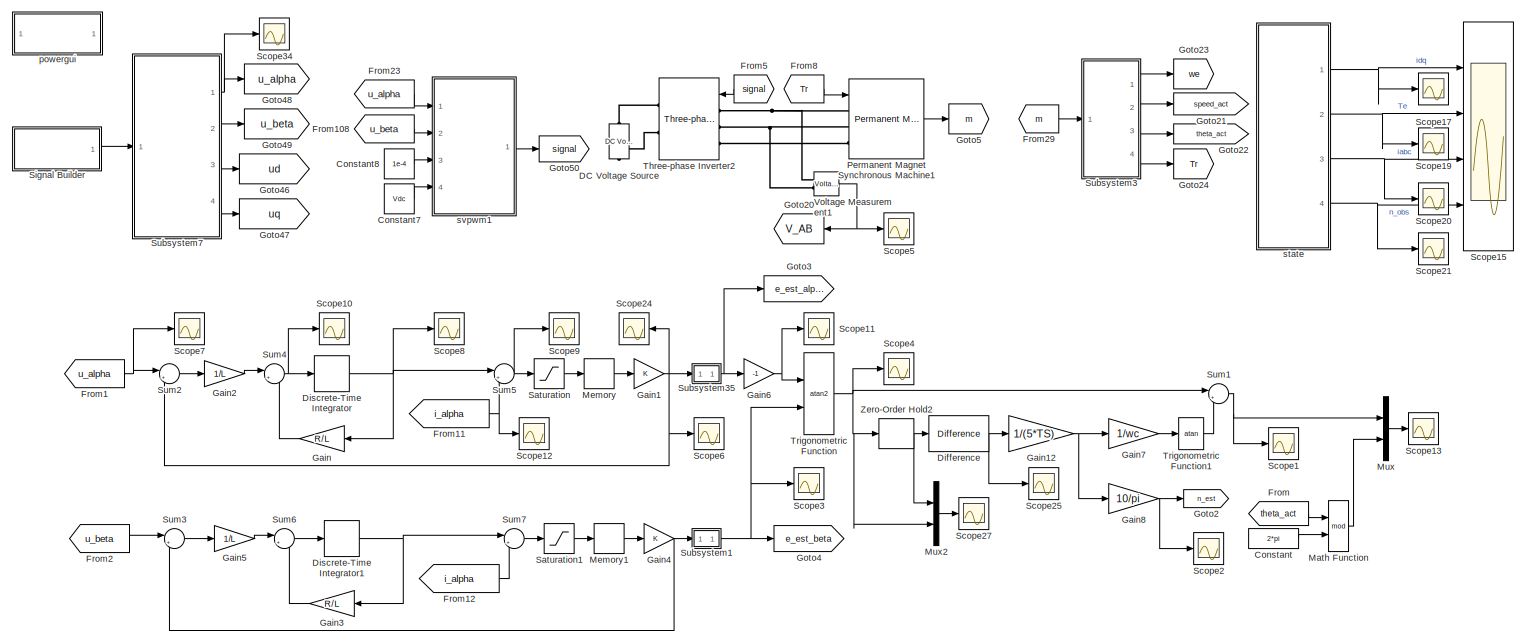
[diagram: root canvas - part 1/2, full width, middle band]
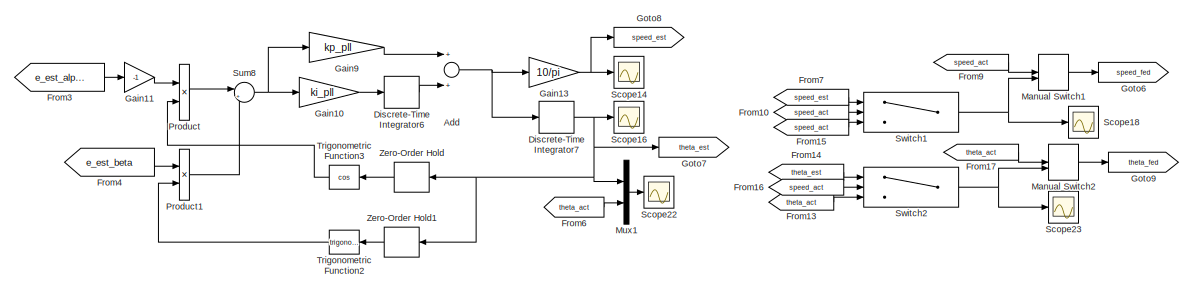
[diagram: root canvas - part 2/2, full width, bottom band]
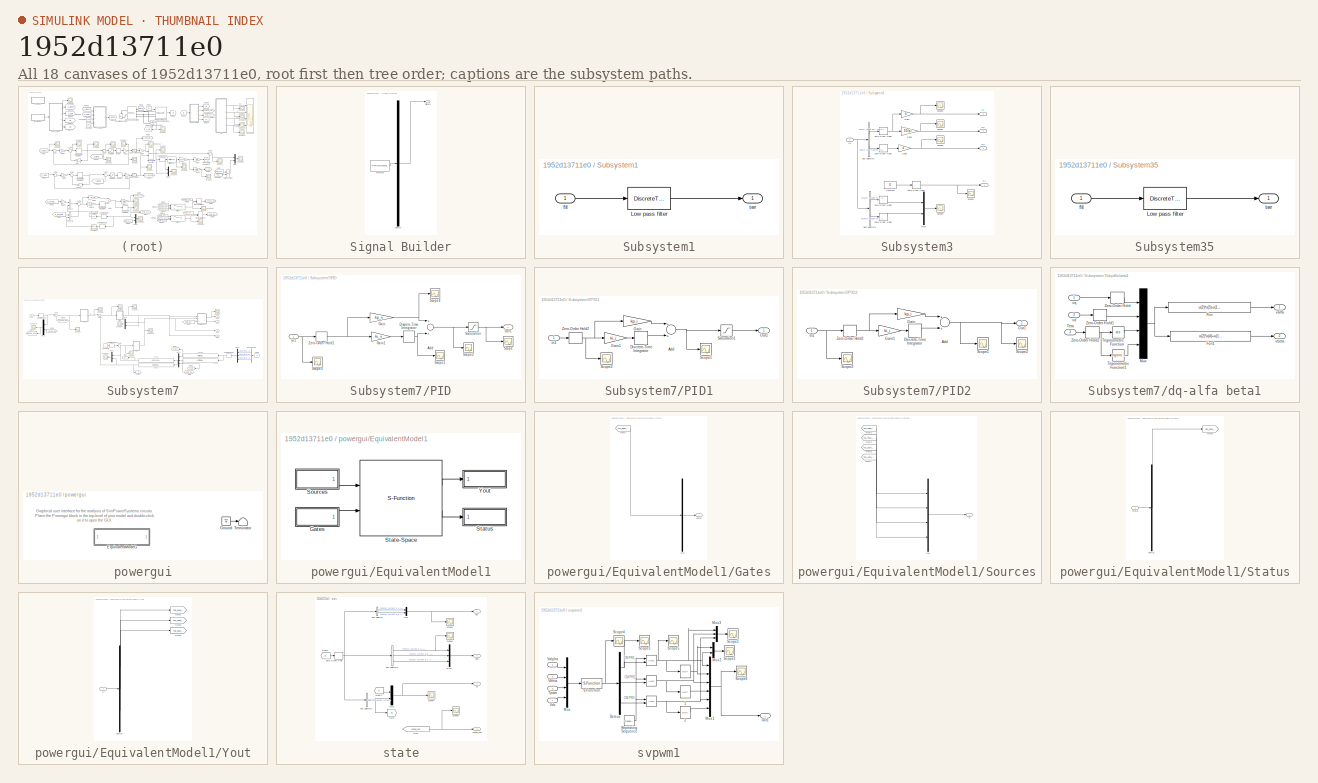
[diagram: thumbnail index - all 18 canvases of the model, root first then tree order]
MODEL slx_1952d13711e0
KIND model
CONFIG InitFcn = parameter
BLOCK [Sum] Add
  InputSameDT = off
  OutDataTypeStr = Inherit: Inherit via internal rule
  Ports = [2, 1]
  SaturateOnIntegerOverflow = off
BLOCK [Constant] Constant
  Value = 2*pi
BLOCK [Constant] Constant7
  Value = Vdc
BLOCK [Constant] Constant8
  Value = 1e-4
BLOCK [Reference] DC Voltage Source  REF=powerlib/Electrical
Sources/DC Voltage Source
  Amplitude = Vdc
  Measurements = Voltage
  Ports = [0, 0, 0, 0, 0, 1, 1]
  SourceBlock = powerlib/Electrical\nSources/DC Voltage Source
  SourceType = DC Voltage Source
BLOCK [Reference] Difference  REF=simulink/Discrete/Difference
  DoSatur = off
  ICPrevInput = 0.0
  InputProcessing = Inherited
  LockScale = off
  OutDataType = fixdt(1, 16)
  OutDataTypeStr = Inherit: Inherit via internal rule
  OutMax = []
  OutMin = []
  OutScaling = 2^-10
  OutputDataTypeScalingMode = Inherit via internal rule
  Ports = [1, 1]
  RndMeth = Floor
  SourceBlock = simulink/Discrete/Difference
  SourceType = Difference
BLOCK [DiscreteIntegrator] Discrete-Time Integrator
  ICPrevOutput = DiscIntNeverNeededParam
  ICPrevScaledInput = DiscIntNeverNeededParam
  Ports = [1, 1]
  SampleTime = -1
BLOCK [DiscreteIntegrator] Discrete-Time Integrator1
  ICPrevOutput = DiscIntNeverNeededParam
  ICPrevScaledInput = DiscIntNeverNeededParam
  Ports = [1, 1]
  SampleTime = -1
BLOCK [DiscreteIntegrator] Discrete-Time Integrator6
  ICPrevOutput = DiscIntNeverNeededParam
  ICPrevScaledInput = DiscIntNeverNeededParam
  Ports = [1, 1]
  SampleTime = -1
BLOCK [DiscreteIntegrator] Discrete-Time Integrator7
  ICPrevOutput = DiscIntNeverNeededParam
  ICPrevScaledInput = DiscIntNeverNeededParam
  Ports = [1, 1]
  SampleTime = -1
BLOCK [From] From
  GotoTag = theta_act
  TagVisibility = global
BLOCK [From] From1
  GotoTag = u_alpha
  TagVisibility = global
BLOCK [From] From10
  GotoTag = speed_act
  TagVisibility = global
BLOCK [From] From108
  GotoTag = u_beta
  TagVisibility = global
BLOCK [From] From11
  GotoTag = i_alpha
  TagVisibility = global
BLOCK [From] From12
  GotoTag = i_alpha
  TagVisibility = global
BLOCK [From] From13
  GotoTag = theta_act
  TagVisibility = global
BLOCK [From] From14
  GotoTag = theta_est
  TagVisibility = global
BLOCK [From] From15
  GotoTag = speed_act
  TagVisibility = global
BLOCK [From] From16
  GotoTag = speed_act
  TagVisibility = global
BLOCK [From] From17
  GotoTag = theta_act
  TagVisibility = global
BLOCK [From] From2
  GotoTag = u_beta
  TagVisibility = global
BLOCK [From] From23
  GotoTag = u_alpha
  TagVisibility = global
BLOCK [From] From29
  GotoTag = m
  TagVisibility = global
BLOCK [From] From3
  GotoTag = e_est_alpha
  TagVisibility = global
BLOCK [From] From4
  GotoTag = e_est_beta
  TagVisibility = global
BLOCK [From] From5
  GotoTag = signal
  TagVisibility = global
BLOCK [From] From6
  GotoTag = theta_act
  TagVisibility = global
BLOCK [From] From7
  GotoTag = speed_est
  TagVisibility = global
BLOCK [From] From8
  GotoTag = Tr
  TagVisibility = global
BLOCK [From] From9
  GotoTag = speed_act
  TagVisibility = global
BLOCK [Gain] Gain
  Gain = R/L
  OutDataTypeStr = Inherit: Inherit via internal rule
  ParamDataTypeStr = Inherit: Inherit via internal rule
  SaturateOnIntegerOverflow = off
BLOCK [Gain] Gain1
  Gain = K
  OutDataTypeStr = Inherit: Inherit via internal rule
  ParamDataTypeStr = Inherit: Inherit via internal rule
  SaturateOnIntegerOverflow = off
BLOCK [Gain] Gain10
  Gain = ki_pll
  OutDataTypeStr = Inherit: Inherit via internal rule
  ParamDataTypeStr = Inherit: Inherit via internal rule
  SaturateOnIntegerOverflow = off
BLOCK [Gain] Gain11
  Gain = -1
  OutDataTypeStr = Inherit: Inherit via internal rule
  ParamDataTypeStr = Inherit: Inherit via internal rule
  SaturateOnIntegerOverflow = off
BLOCK [Gain] Gain12
  Gain = 1/(5*TS)
  OutDataTypeStr = Inherit: Inherit via internal rule
  ParamDataTypeStr = Inherit: Inherit via internal rule
  SaturateOnIntegerOverflow = off
BLOCK [Gain] Gain13
  Gain = 10/pi
  OutDataTypeStr = Inherit: Inherit via internal rule
  ParamDataTypeStr = Inherit: Inherit via internal rule
  SaturateOnIntegerOverflow = off
BLOCK [Gain] Gain2
  Gain = 1/L
  OutDataTypeStr = Inherit: Inherit via internal rule
  ParamDataTypeStr = Inherit: Inherit via internal rule
  SaturateOnIntegerOverflow = off
BLOCK [Gain] Gain3
  Gain = R/L
  OutDataTypeStr = Inherit: Inherit via internal rule
  ParamDataTypeStr = Inherit: Inherit via internal rule
  SaturateOnIntegerOverflow = off
BLOCK [Gain] Gain4
  Gain = K
  OutDataTypeStr = Inherit: Inherit via internal rule
  ParamDataTypeStr = Inherit: Inherit via internal rule
  SaturateOnIntegerOverflow = off
BLOCK [Gain] Gain5
  Gain = 1/L
  OutDataTypeStr = Inherit: Inherit via internal rule
  ParamDataTypeStr = Inherit: Inherit via internal rule
  SaturateOnIntegerOverflow = off
BLOCK [Gain] Gain6
  Gain = -1
  OutDataTypeStr = Inherit: Inherit via internal rule
  ParamDataTypeStr = Inherit: Inherit via internal rule
  SaturateOnIntegerOverflow = off
BLOCK [Gain] Gain7
  Gain = 1/wc
  OutDataTypeStr = Inherit: Inherit via internal rule
  ParamDataTypeStr = Inherit: Inherit via internal rule
  SaturateOnIntegerOverflow = off
BLOCK [Gain] Gain8
  Gain = 10/pi
  OutDataTypeStr = Inherit: Inherit via internal rule
  ParamDataTypeStr = Inherit: Inherit via internal rule
  SaturateOnIntegerOverflow = off
BLOCK [Gain] Gain9
  Gain = kp_pll
  OutDataTypeStr = Inherit: Inherit via internal rule
  ParamDataTypeStr = Inherit: Inherit via internal rule
  SaturateOnIntegerOverflow = off
BLOCK [Goto] Goto2
  GotoTag = n_est
  TagVisibility = global
BLOCK [Goto] Goto20
  GotoTag = V_AB
  TagVisibility = global
BLOCK [Goto] Goto21
  GotoTag = speed_act
  TagVisibility = global
BLOCK [Goto] Goto22
  GotoTag = theta_act
  TagVisibility = global
BLOCK [Goto] Goto23
  GotoTag = we
  TagVisibility = global
BLOCK [Goto] Goto24
  GotoTag = Tr
  TagVisibility = global
BLOCK [Goto] Goto3
  GotoTag = e_est_alpha
  TagVisibility = global
BLOCK [Goto] Goto4
  GotoTag = e_est_beta
  TagVisibility = global
BLOCK [Goto] Goto46
  GotoTag = ud
  TagVisibility = global
BLOCK [Goto] Goto47
  GotoTag = uq
  TagVisibility = global
BLOCK [Goto] Goto48
  GotoTag = u_alpha
  TagVisibility = global
BLOCK [Goto] Goto49
  GotoTag = u_beta
  TagVisibility = global
BLOCK [Goto] Goto5
  GotoTag = m
  TagVisibility = global
BLOCK [Goto] Goto50
  GotoTag = signal
  TagVisibility = global
BLOCK [Goto] Goto6
  GotoTag = speed_fed
  TagVisibility = global
BLOCK [Goto] Goto7
  GotoTag = theta_est
  TagVisibility = global
BLOCK [Goto] Goto8
  GotoTag = speed_est
  TagVisibility = global
BLOCK [Goto] Goto9
  GotoTag = theta_fed
  TagVisibility = global
BLOCK [ManualSwitch] Manual Switch1
BLOCK [ManualSwitch] Manual Switch2
BLOCK [Math] Math Function
  Operator = mod
  Ports = [2, 1]
BLOCK [Memory] Memory
  InheritSampleTime = on
BLOCK [Memory] Memory1
  InheritSampleTime = on
BLOCK [Mux] Mux
  DisplayOption = bar
  Inputs = 2
  Ports = [2, 1]
BLOCK [Mux] Mux1
  DisplayOption = bar
  Inputs = 2
  Ports = [2, 1]
BLOCK [Mux] Mux2
  DisplayOption = bar
  Inputs = 2
  Ports = [2, 1]
BLOCK [Reference] Permanent Magnet Synchronous Machine1  REF=powerlib/Machines/Permanent Magnet
Synchronous Machine
  AttributesFormatString = \n
  Flat = 0
  Flux = 0.003308
  FluxDistribution = Sinusoidal
  Inductance = 0
  InitialConditions = [0,0, 0,0]
  InitialConditions5ph = [0 0 0 0 0 0]
  La = 0.0012
  MachineConstant = Voltage Constant (V_peak L-L / krpm)
  MeasurementBus = off
  Mechanical = [0.0001,0,4]
  MechanicalLoad = Torque Tm
  NbPhases = 3
  PolePairs = 3
  Ports = [1, 1, 0, 0, 0, 3]
  PresetModel = No
  RefAngle = Aligned with phase A axis (original Park)
  Resistance = 0.8
  RotorType = Round
  ShowDetailedParameters = on
  SourceBlock = powerlib/Machines/Permanent Magnet\nSynchronous Machine
  SourceType = Permanent Magnet Synchronous Machine
  TorqueCst = 0.019848
  TsBlock = -1
  TsPowergui = 0
  VoltageCst = 2.4
  dqInductances = [0.01,0.02]
BLOCK [Product] Product
  InputSameDT = off
  OutDataTypeStr = Inherit: Inherit via internal rule
  Ports = [2, 1]
  RndMeth = Floor
  SaturateOnIntegerOverflow = off
BLOCK [Product] Product1
  InputSameDT = off
  OutDataTypeStr = Inherit: Inherit via internal rule
  Ports = [2, 1]
  RndMeth = Floor
  SaturateOnIntegerOverflow = off
BLOCK [Saturate] Saturation
  InputPortMap = u0
  LowerLimit = -5
  Ports = [1, 1]
  UpperLimit = 5
BLOCK [Saturate] Saturation1
  InputPortMap = u0
  LowerLimit = -5
  Ports = [1, 1]
  UpperLimit = 5
BLOCK [Scope] Scope1
  Floating = off
  LimitDataPoints = off
  NumInputPorts = 1
  Ports = [1]
  SaveName = ScopeData7
  ShowLegends = off
  YMax = 700
  YMin = -700
  ZoomMode = xonly
BLOCK [Scope] Scope10
  Floating = off
  LimitDataPoints = off
  NumInputPorts = 1
  Ports = [1]
  SaveName = ScopeData24
  ShowLegends = off
  YMax = 700
  YMin = -700
BLOCK [Scope] Scope11
  Floating = off
  LimitDataPoints = off
  NumInputPorts = 1
  Ports = [1]
  SaveName = ScopeData25
  ShowLegends = off
  YMax = 700
  YMin = -700
BLOCK [Scope] Scope12
  Floating = off
  LimitDataPoints = off
  NumInputPorts = 1
  Ports = [1]
  SaveName = ScopeData31
  ShowLegends = off
  YMax = 700
  YMin = -700
BLOCK [Scope] Scope13
  Floating = off
  LimitDataPoints = off
  NumInputPorts = 1
  Ports = [1]
  SaveName = ScopeData32
  ShowLegends = off
  YMax = 700
  YMin = -700
  ZoomMode = xonly
BLOCK [Scope] Scope14
  Floating = off
  LimitDataPoints = off
  NumInputPorts = 1
  Ports = [1]
  SaveName = ScopeData33
  ShowLegends = off
  YMax = 700
  YMin = -700
  ZoomMode = yonly
BLOCK [Scope] Scope15
  DataFormat = StructureWithTime
  Floating = off
  LimitDataPoints = off
  NumInputPorts = 4
  Ports = [4]
  SaveName = ScopeData20
  ShowLegends = off
  TimeRange = 1.5
  YMax = 15~35~60~900
  YMin = -17.5~-5~-80~-400
  ZoomMode = xonly
BLOCK [Scope] Scope16
  Floating = off
  LimitDataPoints = off
  NumInputPorts = 1
  Ports = [1]
  SaveName = ScopeData34
  ShowLegends = off
  YMax = 700
  YMin = -700
  ZoomMode = xonly
BLOCK [Scope] Scope17
  Floating = off
  LimitDataPoints = off
  NumInputPorts = 1
  Ports = [1]
  SaveName = ScopeData18
  ShowLegends = off
  YMax = 700
  YMin = -700
  ZoomMode = xonly
BLOCK [Scope] Scope18
  Floating = off
  LimitDataPoints = off
  NumInputPorts = 1
  Ports = [1]
  SaveName = ScopeData35
  ShowLegends = off
  YMax = 700
  YMin = -700
  ZoomMode = xonly
BLOCK [Scope] Scope19
  Floating = off
  LimitDataPoints = off
  NumInputPorts = 1
  Ports = [1]
  SaveName = ScopeData19
  ShowLegends = off
  YMax = 700
  YMin = -700
  ZoomMode = xonly
BLOCK [Scope] Scope2
  Floating = off
  LimitDataPoints = off
  NumInputPorts = 1
  Ports = [1]
  SaveName = ScopeData10
  ShowLegends = off
  YMax = 700
  YMin = -700
  ZoomMode = yonly
BLOCK [Scope] Scope20
  Floating = off
  LimitDataPoints = off
  NumInputPorts = 1
  Ports = [1]
  SaveName = ScopeData1
  ShowLegends = off
  YMax = 700
  YMin = -700
  ZoomMode = xonly
BLOCK [Scope] Scope21
  Floating = off
  LimitDataPoints = off
  NumInputPorts = 1
  Ports = [1]
  SaveName = ScopeData4
  ShowLegends = off
  TimeRange = 3
  YMax = 5500
  YMin = 4200
BLOCK [Scope] Scope22
  Floating = off
  LimitDataPoints = off
  NumInputPorts = 1
  Ports = [1]
  SaveName = ScopeData36
  ShowLegends = off
  YMax = 700
  YMin = -700
BLOCK [Scope] Scope23
  Floating = off
  LimitDataPoints = off
  NumInputPorts = 1
  Ports = [1]
  SaveName = ScopeData39
  ShowLegends = off
  YMax = 700
  YMin = -700
  ZoomMode = xonly
BLOCK [Scope] Scope24
  Floating = off
  LimitDataPoints = off
  NumInputPorts = 1
  Ports = [1]
  SaveName = ScopeData40
  ShowLegends = off
  YMax = 700
  YMin = -700
BLOCK [Scope] Scope25
  Floating = off
  LimitDataPoints = off
  NumInputPorts = 1
  Ports = [1]
  SaveName = ScopeData41
  ShowLegends = off
  YMax = 700
  YMin = -700
BLOCK [Scope] Scope27
  Floating = off
  LimitDataPoints = off
  NumInputPorts = 1
  Ports = [1]
  SaveName = ScopeData43
  ShowLegends = off
  YMax = 700
  YMin = -700
  ZoomMode = xonly
BLOCK [Scope] Scope3
  Floating = off
  LimitDataPoints = off
  NumInputPorts = 1
  Ports = [1]
  SaveName = ScopeData11
  ShowLegends = off
  YMax = 700
  YMin = -700
BLOCK [Scope] Scope34
  Floating = off
  LimitDataPoints = off
  NumInputPorts = 1
  Ports = [1]
  SaveName = ScopeData38
  ShowLegends = off
  YMax = 700
  YMin = -700
  ZoomMode = xonly
BLOCK [Scope] Scope4
  Floating = off
  LimitDataPoints = off
  NumInputPorts = 1
  Ports = [1]
  SaveName = ScopeData13
  ShowLegends = off
  YMax = 700
  YMin = -700
BLOCK [Scope] Scope5
  Floating = off
  LimitDataPoints = off
  NumInputPorts = 1
  Ports = [1]
  SaveName = ScopeData78
  ShowLegends = off
  YMax = 700
  YMin = -700
  ZoomMode = xonly
BLOCK [Scope] Scope6
  Floating = off
  LimitDataPoints = off
  NumInputPorts = 1
  Ports = [1]
  SaveName = ScopeData14
  ShowLegends = off
  YMax = 700
  YMin = -700
BLOCK [Scope] Scope7
  Floating = off
  LimitDataPoints = off
  NumInputPorts = 1
  Ports = [1]
  SaveName = ScopeData15
  ShowLegends = off
  YMax = 700
  YMin = -700
BLOCK [Scope] Scope8
  Floating = off
  LimitDataPoints = off
  NumInputPorts = 1
  Ports = [1]
  SaveName = ScopeData16
  ShowLegends = off
  YMax = 700
  YMin = -700
BLOCK [Scope] Scope9
  Floating = off
  LimitDataPoints = off
  NumInputPorts = 1
  Ports = [1]
  SaveName = ScopeData17
  ShowLegends = off
  YMax = 700
  YMin = -700
BLOCK [SubSystem] Signal Builder
  ClipboardFcn = sigbuilder_block('clipboard');
  CloseFcn = sigbuilder_block('close');
  ContinueFcn = sigbuilder_block('continue');
  CopyFcn = sigbuilder_block('copy');
  DeleteFcn = sigbuilder_block('delete');
  LoadFcn = sigbuilder_block('load');
  MaskHideContents = on
  ModelCloseFcn = sigbuilder_block('modelClose');
  NameChangeFcn = sigbuilder_block('namechange');
  OpenFcn = sigbuilder_block('open',[497.25 145.5 550.5 399.75 ]);
  PauseFcn = sigbuilder_block('pause');
  Ports = [0, 1]
  PreSaveFcn = sigbuilder_block('preSave');
  RequestExecContextInheritance = off
  StartFcn = sigbuilder_block('start');
  StopFcn = sigbuilder_block('stop');
  Tag = STV Subsys
BLOCK [Demux] Signal Builder/Demux
  Outputs = 1
  Ports = [1, 1]
  Tag = STV Demux
BLOCK [FromWorkspace] Signal Builder/FromWs
  SampleTime = 0
  Tag = STV FromWs
  VariableName = tuvar
  ZeroCross = on
BLOCK [Outport] Signal Builder/Signal 1
  IconDisplay = Port number
  Tag = STV Outport
BLOCK [SubSystem] Subsystem1
  Ports = [1, 1]
  RequestExecContextInheritance = off
BLOCK [DiscreteTransferFcn] Subsystem1/Low pass filter
  Denominator = [1 -exp(-2*pi*fc1*TS)]
  InputPortMap = u0
  Numerator = [1-exp(-2*pi*fc1*TS)]
  Ports = [1, 1]
  SampleTime = TS
BLOCK [Inport] Subsystem1/fil
  IconDisplay = Port number
BLOCK [Outport] Subsystem1/ter
  IconDisplay = Port number
BLOCK [SubSystem] Subsystem3
  Ports = [1, 4]
  RequestExecContextInheritance = off
BLOCK [BusSelector] Subsystem3/Bus Selector1
  OutputSignals = Rotor speed wm (rad/s),Rotor angle thetam (rad)
  Ports = [1, 2]
BLOCK [BusSelector] Subsystem3/Bus Selector2
  OutputSignals = Stator voltage Vs_d (V),Stator voltage Vs_q (V)
  Ports = [1, 2]
BLOCK [Constant] Subsystem3/Constant
  Value = 0
BLOCK [Gain] Subsystem3/Gain1
  Gain = 4
  OutDataTypeStr = Inherit: Inherit via internal rule
  ParamDataTypeStr = Inherit: Inherit via internal rule
  SaturateOnIntegerOverflow = off
BLOCK [Gain] Subsystem3/Gain2
  Gain = 4
  OutDataTypeStr = Inherit: Inherit via internal rule
  ParamDataTypeStr = Inherit: Inherit via internal rule
  SaturateOnIntegerOverflow = off
BLOCK [Gain] Subsystem3/Gain3
  Gain = 30/pi
  OutDataTypeStr = Inherit: Inherit via internal rule
  ParamDataTypeStr = Inherit: Inherit via internal rule
  SaturateOnIntegerOverflow = off
BLOCK [Inport] Subsystem3/In1
  IconDisplay = Port number
BLOCK [Mux] Subsystem3/Mux1
  DisplayOption = bar
  Inputs = 2
  Ports = [2, 1]
BLOCK [Scope] Subsystem3/Scope1
  Floating = off
  LimitDataPoints = off
  NumInputPorts = 1
  Ports = [1]
  SaveName = ScopeData9
  ShowLegends = off
  YMax = 700
  YMin = -500
BLOCK [Scope] Subsystem3/Scope2
  Floating = off
  LimitDataPoints = off
  NumInputPorts = 1
  Ports = [1]
  SaveName = ScopeData149
  ShowLegends = off
  YMax = 400
  YMin = -25
BLOCK [Scope] Subsystem3/Scope3
  Floating = off
  LimitDataPoints = off
  NumInputPorts = 1
  Ports = [1]
  SaveName = ScopeData79
  ShowLegends = off
  YMax = 191.5
  YMin = 185.5
BLOCK [Scope] Subsystem3/Scope4
  Floating = off
  LimitDataPoints = off
  NumInputPorts = 1
  Ports = [1]
  SaveName = ScopeData88
  ShowLegends = off
  YMax = 400
  YMin = -25
BLOCK [Scope] Subsystem3/Scope5
  Floating = off
  LimitDataPoints = off
  NumInputPorts = 1
  Ports = [1]
  SaveName = ScopeData90
  ShowLegends = off
  YMax = 202.5
  YMin = 195
  ZoomMode = yonly
BLOCK [Outport] Subsystem3/Tr1
  IconDisplay = Port number
BLOCK [Outport] Subsystem3/Tr2
  IconDisplay = Port number
  Port = 2
BLOCK [Outport] Subsystem3/Tr3
  IconDisplay = Port number
  Port = 3
BLOCK [Outport] Subsystem3/Tr4
  IconDisplay = Port number
  Port = 4
BLOCK [ZeroOrderHold] Subsystem3/Zero-Order Hold1
  SampleTime = TS
BLOCK [ZeroOrderHold] Subsystem3/Zero-Order Hold2
  SampleTime = TS
BLOCK [ZeroOrderHold] Subsystem3/Zero-Order Hold3
  SampleTime = TS
BLOCK [ZeroOrderHold] Subsystem3/Zero-Order Hold4
  SampleTime = TS
BLOCK [ZeroOrderHold] Subsystem3/Zero-Order Hold5
  SampleTime = TS
BLOCK [SubSystem] Subsystem35
  Ports = [1, 1]
  RequestExecContextInheritance = off
BLOCK [DiscreteTransferFcn] Subsystem35/Low pass filter
  Denominator = [1 -exp(-2*pi*fc1*TS)]
  InputPortMap = u0
  Numerator = [1-exp(-2*pi*fc1*TS)]
  Ports = [1, 1]
  SampleTime = TS
BLOCK [Inport] Subsystem35/fil
  IconDisplay = Port number
BLOCK [Outport] Subsystem35/ter
  IconDisplay = Port number
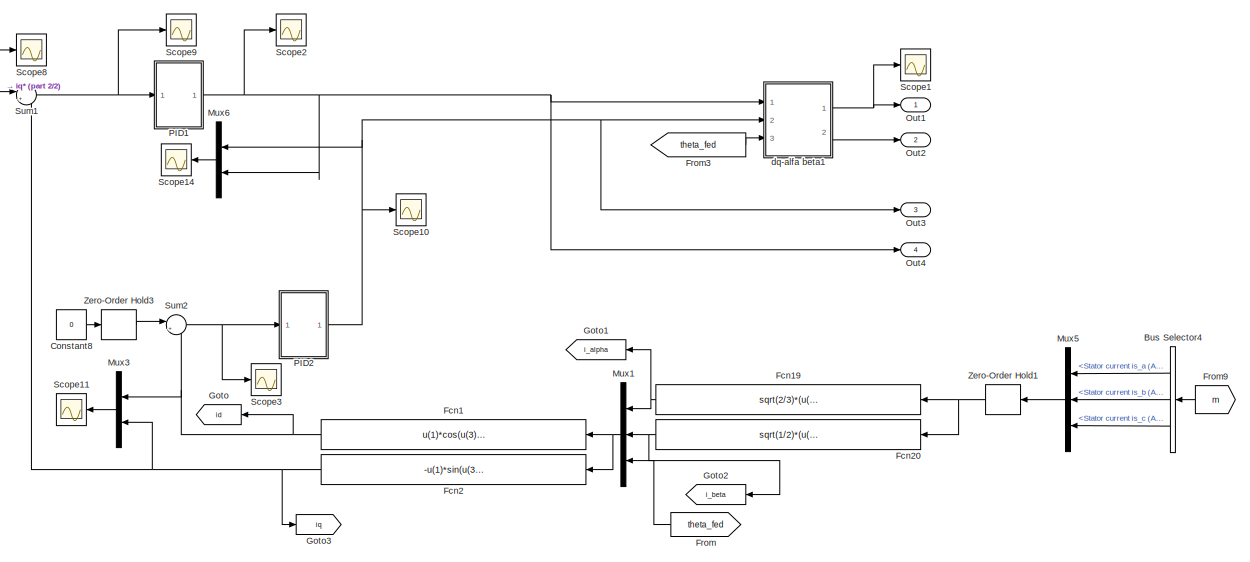
[diagram: Subsystem7 - part 1/2, center side, full height]
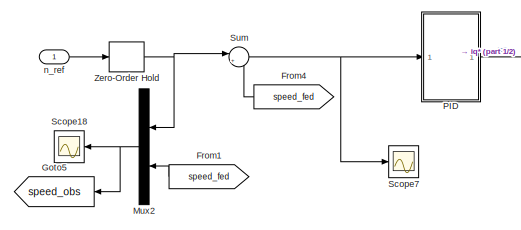
[diagram: Subsystem7 - part 2/2, top left region]
BLOCK [SubSystem] Subsystem7
  Ports = [1, 4]
  RequestExecContextInheritance = off
BLOCK [BusSelector] Subsystem7/Bus Selector4
  OutputSignals = Stator current is_a (A),Stator current is_b (A),Stator current is_c (A)
  Ports = [1, 3]
BLOCK [Constant] Subsystem7/Constant8
  Value = 0
BLOCK [Fcn] Subsystem7/Fcn1
  Expr = u(1)*cos(u(3))+u(2)*sin(u(3))
BLOCK [Fcn] Subsystem7/Fcn19
  Expr = sqrt(2/3)*(u(1)-u(2)/2-u(3)/2)
BLOCK [Fcn] Subsystem7/Fcn2
  Expr = -u(1)*sin(u(3))+u(2)*cos(u(3))
BLOCK [Fcn] Subsystem7/Fcn20
  Expr = sqrt(1/2)*(u(2)-u(3))
BLOCK [From] Subsystem7/From
  GotoTag = theta_fed
  TagVisibility = global
BLOCK [From] Subsystem7/From1
  GotoTag = speed_fed
  TagVisibility = global
BLOCK [From] Subsystem7/From3
  GotoTag = theta_fed
  TagVisibility = global
BLOCK [From] Subsystem7/From4
  GotoTag = speed_fed
  TagVisibility = global
BLOCK [From] Subsystem7/From9
  GotoTag = m
  TagVisibility = global
BLOCK [Goto] Subsystem7/Goto
  GotoTag = id
  TagVisibility = global
BLOCK [Goto] Subsystem7/Goto1
  GotoTag = i_alpha
  TagVisibility = global
BLOCK [Goto] Subsystem7/Goto2
  GotoTag = i_beta
  TagVisibility = global
BLOCK [Goto] Subsystem7/Goto3
  GotoTag = iq
  TagVisibility = global
BLOCK [Goto] Subsystem7/Goto5
  GotoTag = speed_obs
  TagVisibility = global
BLOCK [Mux] Subsystem7/Mux1
  DisplayOption = bar
  Inputs = 3
  Ports = [3, 1]
BLOCK [Mux] Subsystem7/Mux2
  DisplayOption = bar
  Inputs = 2
  Ports = [2, 1]
BLOCK [Mux] Subsystem7/Mux3
  DisplayOption = bar
  Inputs = 2
  Ports = [2, 1]
BLOCK [Mux] Subsystem7/Mux5
  DisplayOption = bar
  Inputs = 3
  Ports = [3, 1]
BLOCK [Mux] Subsystem7/Mux6
  DisplayOption = bar
  Inputs = 2
  Ports = [2, 1]
BLOCK [Outport] Subsystem7/Out1
  IconDisplay = Port number
BLOCK [Outport] Subsystem7/Out2
  IconDisplay = Port number
  Port = 2
BLOCK [Outport] Subsystem7/Out3
  IconDisplay = Port number
  Port = 3
BLOCK [Outport] Subsystem7/Out4
  IconDisplay = Port number
  Port = 4
BLOCK [SubSystem] Subsystem7/PID
  Ports = [1, 1]
  RequestExecContextInheritance = off
BLOCK [Sum] Subsystem7/PID/Add
  InputSameDT = off
  OutDataTypeStr = Inherit: Inherit via internal rule
  Ports = [2, 1]
  SaturateOnIntegerOverflow = off
BLOCK [DiscreteIntegrator] Subsystem7/PID/Discrete-Time Integrator
  ICPrevOutput = DiscIntNeverNeededParam
  ICPrevScaledInput = DiscIntNeverNeededParam
  InitialConditionSetting = State (most efficient)
  Ports = [1, 1]
  SampleTime = -1
BLOCK [Gain] Subsystem7/PID/Gain
  Gain = kp_v
  OutDataTypeStr = Inherit: Inherit via internal rule
  ParamDataTypeStr = Inherit: Inherit via internal rule
  SaturateOnIntegerOverflow = off
BLOCK [Gain] Subsystem7/PID/Gain1
  Gain = ki_v
  OutDataTypeStr = Inherit: Inherit via internal rule
  ParamDataTypeStr = Inherit: Inherit via internal rule
  SaturateOnIntegerOverflow = off
BLOCK [Inport] Subsystem7/PID/In1
  IconDisplay = Port number
BLOCK [Outport] Subsystem7/PID/Out1
  IconDisplay = Port number
BLOCK [Saturate] Subsystem7/PID/Saturation
  InputPortMap = u0
  LowerLimit = -10
  Ports = [1, 1]
  UpperLimit = 15
BLOCK [Scope] Subsystem7/PID/Scope
  Floating = off
  LimitDataPoints = off
  NumInputPorts = 1
  Ports = [1]
  SaveName = ScopeData12
  ShowLegends = off
  ZoomMode = yonly
BLOCK [Scope] Subsystem7/PID/Scope1
  Floating = off
  LimitDataPoints = off
  NumInputPorts = 1
  Ports = [1]
  SaveName = ScopeData27
  ShowLegends = off
BLOCK [Scope] Subsystem7/PID/Scope2
  Floating = off
  LimitDataPoints = off
  NumInputPorts = 1
  Ports = [1]
  SaveName = ScopeData68
  ShowLegends = off
  ZoomMode = yonly
BLOCK [Scope] Subsystem7/PID/Scope3
  Floating = off
  LimitDataPoints = off
  NumInputPorts = 1
  Ports = [1]
  SaveName = ScopeData69
  ShowLegends = off
  ZoomMode = yonly
BLOCK [Scope] Subsystem7/PID/Scope4
  Floating = off
  LimitDataPoints = off
  NumInputPorts = 1
  Ports = [1]
  SaveName = ScopeData87
  ShowLegends = off
  ZoomMode = yonly
BLOCK [ZeroOrderHold] Subsystem7/PID/Zero-Order Hold1
  SampleTime = TS
BLOCK [SubSystem] Subsystem7/PID1
  Ports = [1, 1]
  RequestExecContextInheritance = off
BLOCK [Sum] Subsystem7/PID1/Add
  InputSameDT = off
  OutDataTypeStr = Inherit: Inherit via internal rule
  Ports = [2, 1]
  SaturateOnIntegerOverflow = off
BLOCK [DiscreteIntegrator] Subsystem7/PID1/Discrete-Time Integrator
  ICPrevOutput = DiscIntNeverNeededParam
  ICPrevScaledInput = DiscIntNeverNeededParam
  InitialConditionSetting = State (most efficient)
  Ports = [1, 1]
  SampleTime = -1
BLOCK [Gain] Subsystem7/PID1/Gain
  Gain = kp_i
  OutDataTypeStr = Inherit: Inherit via internal rule
  ParamDataTypeStr = Inherit: Inherit via internal rule
  SaturateOnIntegerOverflow = off
BLOCK [Gain] Subsystem7/PID1/Gain1
  Gain = ki_i
  OutDataTypeStr = Inherit: Inherit via internal rule
  ParamDataTypeStr = Inherit: Inherit via internal rule
  SaturateOnIntegerOverflow = off
BLOCK [Inport] Subsystem7/PID1/In1
  IconDisplay = Port number
BLOCK [Outport] Subsystem7/PID1/Out1
  IconDisplay = Port number
BLOCK [Saturate] Subsystem7/PID1/Saturation1
  InputPortMap = u0
  LowerLimit = -300
  Ports = [1, 1]
  UpperLimit = 300
BLOCK [Scope] Subsystem7/PID1/Scope1
  Floating = off
  LimitDataPoints = off
  NumInputPorts = 1
  Ports = [1]
  SaveName = ScopeData64
  ShowLegends = off
  ZoomMode = yonly
BLOCK [Scope] Subsystem7/PID1/Scope3
  Floating = off
  LimitDataPoints = off
  NumInputPorts = 1
  Ports = [1]
  SaveName = ScopeData65
  ShowLegends = off
  ZoomMode = yonly
BLOCK [ZeroOrderHold] Subsystem7/PID1/Zero-Order Hold2
  SampleTime = TS
BLOCK [SubSystem] Subsystem7/PID2
  Ports = [1, 1]
  RequestExecContextInheritance = off
BLOCK [Sum] Subsystem7/PID2/Add
  InputSameDT = off
  OutDataTypeStr = Inherit: Inherit via internal rule
  Ports = [2, 1]
  SaturateOnIntegerOverflow = off
BLOCK [DiscreteIntegrator] Subsystem7/PID2/Discrete-Time Integrator
  ICPrevOutput = DiscIntNeverNeededParam
  ICPrevScaledInput = DiscIntNeverNeededParam
  InitialConditionSetting = State (most efficient)
  Ports = [1, 1]
  SampleTime = -1
BLOCK [Gain] Subsystem7/PID2/Gain
  Gain = kp_i
  OutDataTypeStr = Inherit: Inherit via internal rule
  ParamDataTypeStr = Inherit: Inherit via internal rule
  SaturateOnIntegerOverflow = off
BLOCK [Gain] Subsystem7/PID2/Gain1
  Gain = ki_i
  OutDataTypeStr = Inherit: Inherit via internal rule
  ParamDataTypeStr = Inherit: Inherit via internal rule
  SaturateOnIntegerOverflow = off
BLOCK [Inport] Subsystem7/PID2/In1
  IconDisplay = Port number
BLOCK [Outport] Subsystem7/PID2/Out1
  IconDisplay = Port number
BLOCK [Scope] Subsystem7/PID2/Scope1
  Floating = off
  LimitDataPoints = off
  NumInputPorts = 1
  Ports = [1]
  SaveName = ScopeData67
  ShowLegends = off
  YMax = -115
  YMin = -185
  ZoomMode = yonly
BLOCK [Scope] Subsystem7/PID2/Scope2
  Floating = off
  LimitDataPoints = off
  NumInputPorts = 1
  Ports = [1]
  SaveName = ScopeData66
  ShowLegends = off
  ZoomMode = yonly
BLOCK [Scope] Subsystem7/PID2/Scope3
  Floating = off
  LimitDataPoints = off
  NumInputPorts = 1
  Ports = [1]
  SaveName = ScopeData70
  ShowLegends = off
  ZoomMode = yonly
BLOCK [ZeroOrderHold] Subsystem7/PID2/Zero-Order Hold2
  SampleTime = TS
BLOCK [Scope] Subsystem7/Scope1
  Floating = off
  LimitDataPoints = off
  NumInputPorts = 1
  Ports = [1]
  SaveName = ScopeData37
  ShowLegends = off
  ZoomMode = yonly
BLOCK [Scope] Subsystem7/Scope10
  Floating = off
  LimitDataPoints = off
  NumInputPorts = 1
  Ports = [1]
  SaveName = ScopeData30
  ShowLegends = off
  ZoomMode = yonly
BLOCK [Scope] Subsystem7/Scope11
  DataFormat = StructureWithTime
  Floating = off
  LimitDataPoints = off
  NumInputPorts = 1
  Ports = [1]
  SampleTime = 0
  SaveName = ScopeData71
  ShowLegends = off
  TimeRange = 1.7
  YMax = 17.5
  YMin = -15
  ZoomMode = yonly
BLOCK [Scope] Subsystem7/Scope14
  DataFormat = StructureWithTime
  Floating = off
  LimitDataPoints = off
  NumInputPorts = 1
  Ports = [1]
  SampleTime = 0
  SaveName = ScopeData106
  ShowLegends = off
  TimeRange = 1.7
  YMax = 17.5
  YMin = -15
BLOCK [Scope] Subsystem7/Scope18
  DataFormat = StructureWithTime
  Floating = off
  LimitDataPoints = off
  NumInputPorts = 1
  Ports = [1]
  SaveName = ScopeData21
  ShowLegends = off
  TimeRange = 0.01073731461302402
  YMax = 1006.526183941498
  YMin = 996.9949713569969
BLOCK [Scope] Subsystem7/Scope2
  Floating = off
  LimitDataPoints = off
  NumInputPorts = 1
  Ports = [1]
  SaveName = ScopeData22
  ShowLegends = off
  ZoomMode = yonly
BLOCK [Scope] Subsystem7/Scope3
  Floating = off
  LimitDataPoints = off
  NumInputPorts = 1
  Ports = [1]
  SaveName = ScopeData23
  ShowLegends = off
  ZoomMode = yonly
BLOCK [Scope] Subsystem7/Scope7
  Floating = off
  LimitDataPoints = off
  NumInputPorts = 1
  Ports = [1]
  SaveName = ScopeData26
  ShowLegends = off
  ZoomMode = yonly
BLOCK [Scope] Subsystem7/Scope8
  Floating = off
  LimitDataPoints = off
  NumInputPorts = 1
  Ports = [1]
  SaveName = ScopeData28
  ShowLegends = off
  ZoomMode = yonly
BLOCK [Scope] Subsystem7/Scope9
  Floating = off
  LimitDataPoints = off
  NumInputPorts = 1
  Ports = [1]
  SaveName = ScopeData29
  ShowLegends = off
  ZoomMode = yonly
BLOCK [Sum] Subsystem7/Sum
  IconShape = round
  InputSameDT = off
  Inputs = |+-
  OutDataTypeStr = Inherit: Inherit via internal rule
  Ports = [2, 1]
  SaturateOnIntegerOverflow = off
BLOCK [Sum] Subsystem7/Sum1
  IconShape = round
  InputSameDT = off
  Inputs = |+-
  OutDataTypeStr = Inherit: Inherit via internal rule
  Ports = [2, 1]
  SaturateOnIntegerOverflow = off
BLOCK [Sum] Subsystem7/Sum2
  IconShape = round
  InputSameDT = off
  Inputs = |+-
  OutDataTypeStr = Inherit: Inherit via internal rule
  Ports = [2, 1]
  SaturateOnIntegerOverflow = off
BLOCK [ZeroOrderHold] Subsystem7/Zero-Order Hold
  SampleTime = TS
BLOCK [ZeroOrderHold] Subsystem7/Zero-Order Hold1
  SampleTime = TS
BLOCK [ZeroOrderHold] Subsystem7/Zero-Order Hold3
  SampleTime = TS
BLOCK [SubSystem] Subsystem7/dq-alfa beta1
  Ports = [3, 2]
  RequestExecContextInheritance = off
BLOCK [Fcn] Subsystem7/dq-alfa beta1/Fcn
  Expr = u(2)*u(3)-u(1)*u(4)
BLOCK [Fcn] Subsystem7/dq-alfa beta1/Fcn1
  Expr = u(2)*u(4)+u(1)*u(3)
BLOCK [Mux] Subsystem7/dq-alfa beta1/Mux
  Ports = [4, 1]
BLOCK [Inport] Subsystem7/dq-alfa beta1/Teta
  IconDisplay = Port number
  Port = 3
BLOCK [Trigonometry] Subsystem7/dq-alfa beta1/Trigonometric Function
  Operator = cos
  Ports = [1, 1]
BLOCK [Trigonometry] Subsystem7/dq-alfa beta1/Trigonometric Function1
  Ports = [1, 1]
BLOCK [ZeroOrderHold] Subsystem7/dq-alfa beta1/Zero-Order Hold
  SampleTime = TS
BLOCK [ZeroOrderHold] Subsystem7/dq-alfa beta1/Zero-Order Hold1
  SampleTime = TS
BLOCK [ZeroOrderHold] Subsystem7/dq-alfa beta1/Zero-Order Hold2
  SampleTime = TS
BLOCK [Outport] Subsystem7/dq-alfa beta1/valfa
  IconDisplay = Port number
BLOCK [Outport] Subsystem7/dq-alfa beta1/vbeta
  IconDisplay = Port number
  Port = 2
BLOCK [Inport] Subsystem7/dq-alfa beta1/vd
  IconDisplay = Port number
  Port = 2
BLOCK [Inport] Subsystem7/dq-alfa beta1/vq
  IconDisplay = Port number
BLOCK [Inport] Subsystem7/n_ref
  IconDisplay = Port number
BLOCK [Sum] Sum1
  IconShape = round
  InputSameDT = off
  Inputs = |++
  OutDataTypeStr = Inherit: Inherit via internal rule
  Ports = [2, 1]
  SaturateOnIntegerOverflow = off
BLOCK [Sum] Sum2
  IconShape = round
  InputSameDT = off
  Inputs = |+-
  OutDataTypeStr = Inherit: Inherit via internal rule
  Ports = [2, 1]
  SaturateOnIntegerOverflow = off
BLOCK [Sum] Sum3
  IconShape = round
  InputSameDT = off
  Inputs = |+-
  OutDataTypeStr = Inherit: Inherit via internal rule
  Ports = [2, 1]
  SaturateOnIntegerOverflow = off
BLOCK [Sum] Sum4
  IconShape = round
  InputSameDT = off
  Inputs = |+-
  OutDataTypeStr = Inherit: Inherit via internal rule
  Ports = [2, 1]
  SaturateOnIntegerOverflow = off
BLOCK [Sum] Sum5
  IconShape = round
  InputSameDT = off
  Inputs = |+-
  OutDataTypeStr = Inherit: Inherit via internal rule
  Ports = [2, 1]
  SaturateOnIntegerOverflow = off
BLOCK [Sum] Sum6
  IconShape = round
  InputSameDT = off
  Inputs = |+-
  OutDataTypeStr = Inherit: Inherit via internal rule
  Ports = [2, 1]
  SaturateOnIntegerOverflow = off
BLOCK [Sum] Sum7
  IconShape = round
  InputSameDT = off
  Inputs = |+-
  OutDataTypeStr = Inherit: Inherit via internal rule
  Ports = [2, 1]
  SaturateOnIntegerOverflow = off
BLOCK [Sum] Sum8
  IconShape = round
  InputSameDT = off
  Inputs = |+-
  OutDataTypeStr = Inherit: Inherit via internal rule
  Ports = [2, 1]
  SaturateOnIntegerOverflow = off
BLOCK [Switch] Switch1
  Criteria = u2 > Threshold
  InputSameDT = off
  SaturateOnIntegerOverflow = off
  Threshold = Threshold
BLOCK [Switch] Switch2
  Criteria = u2 > Threshold
  InputSameDT = off
  SaturateOnIntegerOverflow = off
  Threshold = Threshold
BLOCK [Reference] Three-phase Inverter2  REF=AC6DriveInternalModels/Three-phase Inverter
  Arms = 3
  Device = IGBT / Diodes
  Flux = 0.175
  ForwardVoltage = 0
  ForwardVoltages = [0.8,0.8]
  GTOparameters = [0,0]
  IGBTParameters = [1e-6,2e-6]
  Lon = 0
  Measurements = All voltages and currents
  Ports = [1, 0, 0, 0, 0, 3, 2]
  Resistance = 0.2
  Ron = 1e-3
  SnubberCapacitance = inf
  SnubberResistance = 5000
  SourceBlock = AC6DriveInternalModels/Three-phase Inverter
  SourceFrequency = 60
  SourceType = SPSdrives Converter
  converterType = Inverter
  dqInductances = [8.5e-3,8.5e-3]
  p = 4
BLOCK [Trigonometry] Trigonometric Function
  Operator = atan2
  Ports = [2, 1]
BLOCK [Trigonometry] Trigonometric Function1
  Operator = atan
  Ports = [1, 1]
BLOCK [Trigonometry] Trigonometric Function2
  Ports = [1, 1]
BLOCK [Trigonometry] Trigonometric Function3
  Operator = cos
  Ports = [1, 1]
BLOCK [Reference] Voltage Measurement1  REF=powerlib/Measurements/Voltage Measurement
  OutputType = Complex
  PSBequivalent = 0
  PhasorSimulation = off
  Ports = [0, 1, 0, 0, 0, 2]
  SourceBlock = powerlib/Measurements/Voltage Measurement
  SourceType = Voltage Measurement
  UserDataPersistent = on
BLOCK [ZeroOrderHold] Zero-Order Hold
  SampleTime = TS
BLOCK [ZeroOrderHold] Zero-Order Hold1
  SampleTime = TS
BLOCK [ZeroOrderHold] Zero-Order Hold2
  SampleTime = 5*TS
BLOCK [SubSystem] powergui
  AncestorBlock = powerlib/powergui
  CopyFcn = powergui( 'Copy_Callback' , gcb , 0 , [ ] );
  DeleteFcn = % see geck 675031 powergui( 'Copy_Callback' , gcb , 1 , [ ] );\n                                                              \npowergui( 'CloseButton_Callback' , gcb , [ ] , [ ] );
  InitFcn = powergui( 'InitFcn_Callback' , gcb , 0 , [ ] );
  ModelCloseFcn = powergui( 'CloseButton_Callback' , gcb , [ ] , [ ] );
  NameChangeFcn = powergui( 'NameChangeFcn_Callback' , gcb , 0 , [ ] );
  OpenFcn = powergui(gcb,'Open')
  Ports = []
  PreSaveFcn = powergui( 'PreSaveFcn_Callback' , gcb , [ ] , [ ] ); \npowergui( 'CloseButton_Callback' , gcb , [ ] , [ ] );
  Priority = 1
  RequestExecContextInheritance = off
  StopFcn = powergui( 'StopFcn_Callback' , gcb , 0 , [ ] );
  UserDataPersistent = on
BLOCK [SubSystem] powergui/EquivalentModel1
  Ports = []
  RequestExecContextInheritance = off
BLOCK [SubSystem] powergui/EquivalentModel1/Gates
  Ports = [0, 1]
  RequestExecContextInheritance = off
BLOCK [From] powergui/EquivalentModel1/Gates/From1
  GotoTag = T52_5006_4458119330407
  TagVisibility = global
BLOCK [Mux] powergui/EquivalentModel1/Gates/Mux
  DisplayOption = bar
  Inputs = 1
  Ports = [1, 1]
BLOCK [Outport] powergui/EquivalentModel1/Gates/gates
  IconDisplay = Port number
BLOCK [SubSystem] powergui/EquivalentModel1/Sources
  Ports = [0, 1]
  RequestExecContextInheritance = off
BLOCK [From] powergui/EquivalentModel1/Sources/From1
  GotoTag = T53_4968_3593058413077
  TagVisibility = global
BLOCK [From] powergui/EquivalentModel1/Sources/From2
  GotoTag = T51_4931_4241103169396
  TagVisibility = global
BLOCK [From] powergui/EquivalentModel1/Sources/From3
  GotoTag = T31_2924_1722522101957
  TagVisibility = global
BLOCK [From] powergui/EquivalentModel1/Sources/From4
  GotoTag = T50_4753_3619216869812
  TagVisibility = global
BLOCK [Mux] powergui/EquivalentModel1/Sources/Mux
  DisplayOption = bar
  Inputs = [6 2 1 6]
  Ports = [4, 1]
BLOCK [Outport] powergui/EquivalentModel1/Sources/u
  IconDisplay = Port number
BLOCK [S-Function] powergui/EquivalentModel1/State-Space
  EnableBusSupport = off
  FunctionName = sfun_spssw_discc
  Parameters = S.Ts,S.A, S.B, S.C, S.D, S.x0, S.EnableUseOfTLC,S.SwitchResistance ,S.SwitchType, S.SwitchGateInitialValue, S.OutputsToResetToZero
  Ports = [2, 2]
BLOCK [SubSystem] powergui/EquivalentModel1/Status
  Ports = [1]
  RequestExecContextInheritance = off
BLOCK [Demux] powergui/EquivalentModel1/Status/Demux
  DisplayOption = bar
  Outputs = 1
  Ports = [1, 1]
BLOCK [Goto] powergui/EquivalentModel1/Status/Goto1
  GotoTag = T54_5241_5095670874902
  TagVisibility = global
BLOCK [Inport] powergui/EquivalentModel1/Status/status
  IconDisplay = Port number
BLOCK [SubSystem] powergui/EquivalentModel1/Yout
  Ports = [1]
  RequestExecContextInheritance = off
BLOCK [Demux] powergui/EquivalentModel1/Yout/Demux
  DisplayOption = bar
  Outputs = [6 2 1]
  Ports = [1, 3]
BLOCK [Goto] powergui/EquivalentModel1/Yout/Goto1
  GotoTag = T55_5340_5199229548404
  TagVisibility = global
BLOCK [Goto] powergui/EquivalentModel1/Yout/Goto2
  GotoTag = T51_4926_4192713061349
  TagVisibility = global
BLOCK [Goto] powergui/EquivalentModel1/Yout/Goto3
  GotoTag = T36_3587_2307949626571
  TagVisibility = global
BLOCK [Inport] powergui/EquivalentModel1/Yout/v,i
  IconDisplay = Port number
BLOCK [Ground] powergui/Ground
BLOCK [Terminator] powergui/Terminator
BLOCK [SubSystem] state
  Ports = [0, 4]
  RequestExecContextInheritance = off
BLOCK [BusSelector] state/Bus Selector
  OutputSignals = Stator current is_d (A),Stator current is_q (A)
  Ports = [1, 2]
BLOCK [BusSelector] state/Bus Selector1
  OutputSignals = Electromagnetic torque Te (N*m)
  Ports = [1, 1]
BLOCK [BusSelector] state/Bus Selector3
  OutputSignals = Stator current is_a (A),Stator current is_b (A),Stator current is_c (A)
  Ports = [1, 3]
BLOCK [From] state/From
  GotoTag = speed_obs
  TagVisibility = global
BLOCK [From] state/From6
  GotoTag = m
  TagVisibility = global
BLOCK [From] state/From7
  GotoTag = Tr
  TagVisibility = global
BLOCK [Goto] state/Goto
  GotoTag = Te
  TagVisibility = global
BLOCK [Mux] state/Mux
  DisplayOption = bar
  Inputs = 2
  Ports = [2, 1]
BLOCK [Mux] state/Mux1
  DisplayOption = bar
  Inputs = 2
  Ports = [2, 1]
BLOCK [Mux] state/Mux2
  DisplayOption = bar
  Inputs = 3
  Ports = [3, 1]
BLOCK [Scope] state/Scope1
  DataFormat = StructureWithTime
  Floating = off
  LimitDataPoints = off
  NumInputPorts = 1
  Ports = [1]
  SampleTime = 0
  SaveName = iabc
  SaveToWorkspace = on
  ShowLegends = off
  TimeRange = 0.7000000000000001
  YMax = 8
  YMin = -4
  ZoomMode = yonly
BLOCK [Scope] state/Scope2
  DataFormat = StructureWithTime
  Floating = off
  LimitDataPoints = off
  NumInputPorts = 1
  Ports = [1]
  SampleTime = 0
  SaveName = iabc1
  SaveToWorkspace = on
  ShowLegends = off
  TimeRange = 0.7000000000000001
  YMax = 18
  YMin = -2
BLOCK [Scope] state/Scope3
  DataFormat = StructureWithTime
  Floating = off
  LimitDataPoints = off
  NumInputPorts = 1
  Ports = [1]
  SampleTime = 0
  SaveName = iabc2
  SaveToWorkspace = on
  ShowLegends = off
  TimeRange = 0.7000000000000001
  YMax = 1712
  YMin = 1700
BLOCK [Scope] state/Scope4
  DataFormat = StructureWithTime
  Floating = off
  LimitDataPoints = off
  NumInputPorts = 1
  Ports = [1]
  SampleTime = 0
  SaveName = iabc3
  SaveToWorkspace = on
  ShowLegends = off
  TimeRange = 0.7000000000000001
  YMax = 8
  YMin = -4
BLOCK [Outport] state/Te
  IconDisplay = Port number
  Port = 2
BLOCK [ZeroOrderHold] state/Zero-Order Hold
  SampleTime = TS
BLOCK [Outport] state/iabc
  IconDisplay = Port number
  Port = 3
BLOCK [Outport] state/idq
  IconDisplay = Port number
BLOCK [Outport] state/speed_obs
  IconDisplay = Port number
  Port = 4
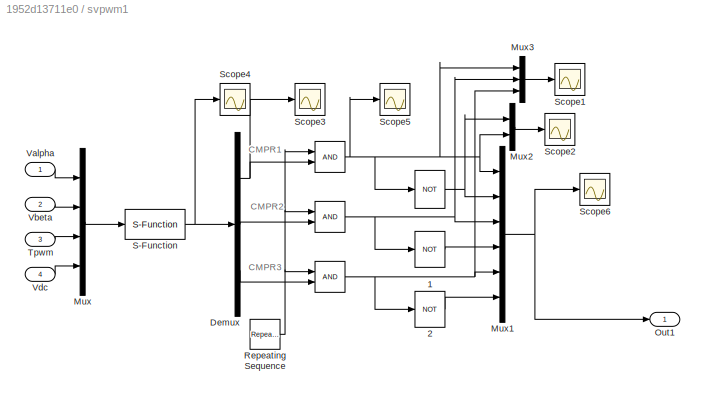
BLOCK [SubSystem] svpwm1
  Ports = [4, 1]
  RequestExecContextInheritance = off
BLOCK [RelationalOperator] svpwm1/ 
  InputSameDT = off
  Ports = [2, 1]
  ZeroCross = off
BLOCK [RelationalOperator] svpwm1/  
  InputSameDT = off
  OutDataTypeStr = boolean
  Ports = [2, 1]
BLOCK [RelationalOperator] svpwm1/   
  InputSameDT = off
  OutDataTypeStr = boolean
  Ports = [2, 1]
BLOCK [Logic] svpwm1/    
  AllPortsSameDT = off
  Inputs = 1
  Operator = NOT
  OutDataTypeStr = boolean
  Ports = [1, 1]
BLOCK [Logic] svpwm1/    1
  AllPortsSameDT = off
  Inputs = 1
  Operator = NOT
  OutDataTypeStr = boolean
  Ports = [1, 1]
BLOCK [Logic] svpwm1/    2
  AllPortsSameDT = off
  Inputs = 1
  Operator = NOT
  OutDataTypeStr = boolean
  Ports = [1, 1]
BLOCK [Demux] svpwm1/Demux
  DisplayOption = bar
  Outputs = 3
  Ports = [1, 3]
BLOCK [Mux] svpwm1/Mux
  DisplayOption = bar
  Ports = [4, 1]
BLOCK [Mux] svpwm1/Mux1
  DisplayOption = bar
  Inputs = 6
  Ports = [6, 1]
BLOCK [Mux] svpwm1/Mux2
  DisplayOption = bar
  Inputs = 2
  Ports = [2, 1]
BLOCK [Mux] svpwm1/Mux3
  DisplayOption = bar
  Inputs = 3
  Ports = [3, 1]
BLOCK [Outport] svpwm1/Out1
  IconDisplay = Port number
BLOCK [Reference] svpwm1/Repeating Sequence  REF=simulink/Sources/Repeating
Sequence
  Ports = [0, 1]
  SourceBlock = simulink/Sources/Repeating\nSequence
  SourceType = Repeating table
  rep_seq_t = [0 0.00005 0.0001]
  rep_seq_y = [0 0.00005 0]
BLOCK [S-Function] svpwm1/S-Function
  EnableBusSupport = off
  FunctionName = svpwm
  Ports = [1, 1]
BLOCK [Scope] svpwm1/Scope1
  DataFormat = StructureWithTime
  Floating = off
  LimitDataPoints = off
  NumInputPorts = 1
  Ports = [1]
  SampleTime = 0
  SaveName = ScopeData3
  ShowLegends = off
  TimeRange = 1
  YMax = 2
  YMin = -1
  ZoomMode = yonly
BLOCK [Scope] svpwm1/Scope2
  DataFormat = StructureWithTime
  Floating = off
  LimitDataPoints = off
  NumInputPorts = 1
  Ports = [1]
  SampleTime = 0
  SaveName = ScopeData5
  ShowLegends = off
  TimeRange = 0.2
  YMax = 5.25e-005
  YMin = -2.5e-006
BLOCK [Scope] svpwm1/Scope3
  DataFormat = StructureWithTime
  Floating = off
  LimitDataPoints = off
  NumInputPorts = 1
  Ports = [1]
  SampleTime = 0
  ShowLegends = off
  TimeRange = 0.2
  YMax = 5.25e-005
  YMin = -2.5e-006
BLOCK [Scope] svpwm1/Scope4
  DataFormat = StructureWithTime
  Floating = off
  LimitDataPoints = off
  NumInputPorts = 1
  Ports = [1]
  SampleTime = 0
  SaveName = ScopeData6
  ShowLegends = off
  TimeRange = 0.2
  YMax = 5.25e-005
  YMin = -2.5e-006
  ZoomMode = xonly
BLOCK [Scope] svpwm1/Scope5
  DataFormat = StructureWithTime
  Floating = off
  LimitDataPoints = off
  NumInputPorts = 1
  Ports = [1]
  SampleTime = 0
  SaveName = ScopeData2
  ShowLegends = off
  TimeRange = 0.2
  YMax = 5.25e-005
  YMin = -2.5e-006
BLOCK [Scope] svpwm1/Scope6
  DataFormat = StructureWithTime
  Floating = off
  LimitDataPoints = off
  NumInputPorts = 1
  Ports = [1]
  SampleTime = 0
  SaveName = ScopeData8
  ShowLegends = off
  TimeRange = 0.2
  YMax = 5.25e-005
  YMin = -2.5e-006
BLOCK [Inport] svpwm1/Tpwm
  IconDisplay = Port number
  Port = 3
BLOCK [Inport] svpwm1/Valpha
  IconDisplay = Port number
BLOCK [Inport] svpwm1/Vbeta
  IconDisplay = Port number
  Port = 2
BLOCK [Inport] svpwm1/Vdc
  IconDisplay = Port number
  Port = 4
ANNOTATION powergui: Graphical user interface for the analysis of SimPowerSystems circuits. Place the Powergui block in the top-level of your model and double-click on it to open the GUI.
ANNOTATION svpwm1: CMPR1
ANNOTATION svpwm1: CMPR2
ANNOTATION svpwm1: CMPR3
NET Add:1 -> Discrete-Time Integrator7:1, Gain13:1
LINE Constant7:1 -> svpwm1:4
LINE Constant8:1 -> svpwm1:3
LINE Constant:1 -> Math Function:2
NET Difference:1 -> Gain12:1, Scope25:1
NET Discrete-Time Integrator1:1 -> Gain3:1, Sum7:1
LINE Discrete-Time Integrator6:1 -> Add:2
NET Discrete-Time Integrator7:1 -> Goto7:1, Mux1:1, Scope16:1, Zero-Order Hold1:1, Zero-Order Hold:1
NET Discrete-Time Integrator:1 -> Gain:1, Scope8:1, Sum5:1
LINE From108:1 -> svpwm1:2
LINE From10:1 -> Switch1:2
NET From11:1 -> Scope12:1, Sum5:2
LINE From12:1 -> Sum7:2
LINE From13:1 -> Switch2:3
LINE From14:1 -> Switch2:1
LINE From15:1 -> Switch1:3
LINE From16:1 -> Switch2:2
LINE From17:1 -> Manual Switch2:1
NET From1:1 -> Scope7:1, Sum2:1
LINE From23:1 -> svpwm1:1
LINE From29:1 -> Subsystem3:1
LINE From2:1 -> Sum3:1
LINE From3:1 -> Gain11:1
LINE From4:1 -> Product1:1
LINE From5:1 -> Three-phase Inverter2:1
LINE From6:1 -> Mux1:2
LINE From7:1 -> Switch1:1
LINE From8:1 -> Permanent Magnet Synchronous Machine1:1
LINE From9:1 -> Manual Switch1:1
LINE From:1 -> Math Function:1
LINE Gain10:1 -> Discrete-Time Integrator6:1
LINE Gain11:1 -> Product:1
NET Gain12:1 -> Gain7:1, Gain8:1
NET Gain13:1 -> Goto8:1, Scope14:1
NET Gain1:1 -> Scope24:1, Scope6:1, Subsystem35:1, Sum2:2
LINE Gain2:1 -> Sum4:1
LINE Gain3:1 -> Sum6:2
NET Gain4:1 -> Subsystem1:1, Sum3:2
LINE Gain5:1 -> Sum6:1
NET Gain6:1 -> Scope11:1, Trigonometric Function:1
LINE Gain7:1 -> Trigonometric Function1:1
NET Gain8:1 -> Goto2:1, Scope2:1
LINE Gain9:1 -> Add:1
LINE Gain:1 -> Sum4:2
LINE Manual Switch1:1 -> Goto6:1
LINE Manual Switch2:1 -> Goto9:1
LINE Math Function:1 -> Mux:2
LINE Memory1:1 -> Gain4:1
LINE Memory:1 -> Gain1:1
LINE Mux1:1 -> Scope22:1
LINE Mux2:1 -> Scope27:1
LINE Mux:1 -> Scope13:1
LINE Permanent Magnet Synchronous Machine1:1 -> Goto5:1
LINE Product1:1 -> Sum8:2
LINE Product:1 -> Sum8:1
LINE Saturation1:1 -> Memory1:1
LINE Saturation:1 -> Memory:1
LINE Signal Builder:1 -> Subsystem7:1
LINE Subsystem1/Low pass filter:1 -> Subsystem1/ter:1
LINE Subsystem1/fil:1 -> Subsystem1/Low pass filter:1
NET Subsystem1:1 -> Goto4:1, Scope3:1, Trigonometric Function:2
LINE Subsystem3/Bus Selector1:1 -> Subsystem3/Zero-Order Hold2:1
LINE Subsystem3/Bus Selector1:2 -> Subsystem3/Zero-Order Hold4:1
LINE Subsystem3/Bus Selector2:1 -> Subsystem3/Zero-Order Hold3:1
LINE Subsystem3/Bus Selector2:2 -> Subsystem3/Zero-Order Hold5:1
LINE Subsystem3/Constant:1 -> Subsystem3/Zero-Order Hold1:1
NET Subsystem3/Gain1:1 -> Subsystem3/Scope5:1, Subsystem3/Tr3:1
NET Subsystem3/Gain2:1 -> Subsystem3/Scope3:1, Subsystem3/Tr1:1
NET Subsystem3/Gain3:1 -> Subsystem3/Scope1:1, Subsystem3/Tr2:1
NET Subsystem3/In1:1 -> Subsystem3/Bus Selector1:1, Subsystem3/Bus Selector2:1
LINE Subsystem3/Mux1:1 -> Subsystem3/Scope4:1
NET Subsystem3/Zero-Order Hold1:1 -> Subsystem3/Scope2:1, Subsystem3/Tr4:1
NET Subsystem3/Zero-Order Hold2:1 -> Subsystem3/Gain2:1, Subsystem3/Gain3:1
LINE Subsystem3/Zero-Order Hold3:1 -> Subsystem3/Mux1:1
LINE Subsystem3/Zero-Order Hold4:1 -> Subsystem3/Gain1:1
LINE Subsystem3/Zero-Order Hold5:1 -> Subsystem3/Mux1:2
LINE Subsystem35/Low pass filter:1 -> Subsystem35/ter:1
LINE Subsystem35/fil:1 -> Subsystem35/Low pass filter:1
NET Subsystem35:1 -> Gain6:1, Goto3:1
LINE Subsystem3:1 -> Goto23:1
LINE Subsystem3:2 -> Goto21:1
LINE Subsystem3:3 -> Goto22:1
LINE Subsystem3:4 -> Goto24:1
LINE Subsystem7/Bus Selector4:1 -> Subsystem7/Mux5:1
LINE Subsystem7/Bus Selector4:2 -> Subsystem7/Mux5:2
LINE Subsystem7/Bus Selector4:3 -> Subsystem7/Mux5:3
LINE Subsystem7/Constant8:1 -> Subsystem7/Zero-Order Hold3:1
NET Subsystem7/Fcn19:1 -> Subsystem7/Goto1:1, Subsystem7/Mux1:1
NET Subsystem7/Fcn1:1 -> Subsystem7/Goto:1, Subsystem7/Mux3:1, Subsystem7/Sum2:2
NET Subsystem7/Fcn20:1 -> Subsystem7/Goto2:1, Subsystem7/Mux1:2
NET Subsystem7/Fcn2:1 -> Subsystem7/Goto3:1, Subsystem7/Mux3:2, Subsystem7/Sum1:2
LINE Subsystem7/From1:1 -> Subsystem7/Mux2:2
LINE Subsystem7/From3:1 -> Subsystem7/dq-alfa beta1:3
LINE Subsystem7/From4:1 -> Subsystem7/Sum:2
LINE Subsystem7/From9:1 -> Subsystem7/Bus Selector4:1
LINE Subsystem7/From:1 -> Subsystem7/Mux1:3
NET Subsystem7/Mux1:1 -> Subsystem7/Fcn1:1, Subsystem7/Fcn2:1
NET Subsystem7/Mux2:1 -> Subsystem7/Goto5:1, Subsystem7/Scope18:1
LINE Subsystem7/Mux3:1 -> Subsystem7/Scope11:1
LINE Subsystem7/Mux5:1 -> Subsystem7/Zero-Order Hold1:1
LINE Subsystem7/Mux6:1 -> Subsystem7/Scope14:1
NET Subsystem7/PID/Add:1 -> Subsystem7/PID/Saturation:1, Subsystem7/PID/Scope2:1
NET Subsystem7/PID/Discrete-Time Integrator:1 -> Subsystem7/PID/Add:2, Subsystem7/PID/Scope1:1
LINE Subsystem7/PID/Gain1:1 -> Subsystem7/PID/Discrete-Time Integrator:1
NET Subsystem7/PID/Gain:1 -> Subsystem7/PID/Add:1, Subsystem7/PID/Scope4:1
NET Subsystem7/PID/In1:1 -> Subsystem7/PID/Scope3:1, Subsystem7/PID/Zero-Order Hold1:1
NET Subsystem7/PID/Saturation:1 -> Subsystem7/PID/Out1:1, Subsystem7/PID/Scope:1
NET Subsystem7/PID/Zero-Order Hold1:1 -> Subsystem7/PID/Gain1:1, Subsystem7/PID/Gain:1
NET Subsystem7/PID1/Add:1 -> Subsystem7/PID1/Saturation1:1, Subsystem7/PID1/Scope1:1
LINE Subsystem7/PID1/Discrete-Time Integrator:1 -> Subsystem7/PID1/Add:2
LINE Subsystem7/PID1/Gain1:1 -> Subsystem7/PID1/Discrete-Time Integrator:1
LINE Subsystem7/PID1/Gain:1 -> Subsystem7/PID1/Add:1
LINE Subsystem7/PID1/In1:1 -> Subsystem7/PID1/Zero-Order Hold2:1
LINE Subsystem7/PID1/Saturation1:1 -> Subsystem7/PID1/Out1:1
NET Subsystem7/PID1/Zero-Order Hold2:1 -> Subsystem7/PID1/Gain1:1, Subsystem7/PID1/Gain:1, Subsystem7/PID1/Scope3:1
NET Subsystem7/PID1:1 -> Subsystem7/Mux6:2, Subsystem7/Out4:1, Subsystem7/Scope2:1, Subsystem7/dq-alfa beta1:1
NET Subsystem7/PID2/Add:1 -> Subsystem7/PID2/Out1:1, Subsystem7/PID2/Scope1:1, Subsystem7/PID2/Scope2:1
LINE Subsystem7/PID2/Discrete-Time Integrator:1 -> Subsystem7/PID2/Add:2
LINE Subsystem7/PID2/Gain1:1 -> Subsystem7/PID2/Discrete-Time Integrator:1
LINE Subsystem7/PID2/Gain:1 -> Subsystem7/PID2/Add:1
NET Subsystem7/PID2/In1:1 -> Subsystem7/PID2/Scope3:1, Subsystem7/PID2/Zero-Order Hold2:1
NET Subsystem7/PID2/Zero-Order Hold2:1 -> Subsystem7/PID2/Gain1:1, Subsystem7/PID2/Gain:1
NET Subsystem7/PID2:1 -> Subsystem7/Mux6:1, Subsystem7/Out3:1, Subsystem7/Scope10:1, Subsystem7/dq-alfa beta1:2
NET Subsystem7/PID:1 -> Subsystem7/Scope8:1, Subsystem7/Sum1:1
NET Subsystem7/Sum1:1 -> Subsystem7/PID1:1, Subsystem7/Scope9:1
NET Subsystem7/Sum2:1 -> Subsystem7/PID2:1, Subsystem7/Scope3:1
NET Subsystem7/Sum:1 -> Subsystem7/PID:1, Subsystem7/Scope7:1
NET Subsystem7/Zero-Order Hold1:1 -> Subsystem7/Fcn19:1, Subsystem7/Fcn20:1
LINE Subsystem7/Zero-Order Hold3:1 -> Subsystem7/Sum2:1
NET Subsystem7/Zero-Order Hold:1 -> Subsystem7/Mux2:1, Subsystem7/Sum:1
LINE Subsystem7/dq-alfa beta1/Fcn1:1 -> Subsystem7/dq-alfa beta1/vbeta:1
LINE Subsystem7/dq-alfa beta1/Fcn:1 -> Subsystem7/dq-alfa beta1/valfa:1
NET Subsystem7/dq-alfa beta1/Mux:1 -> Subsystem7/dq-alfa beta1/Fcn1:1, Subsystem7/dq-alfa beta1/Fcn:1
LINE Subsystem7/dq-alfa beta1/Teta:1 -> Subsystem7/dq-alfa beta1/Zero-Order Hold2:1
LINE Subsystem7/dq-alfa beta1/Trigonometric Function1:1 -> Subsystem7/dq-alfa beta1/Mux:4
LINE Subsystem7/dq-alfa beta1/Trigonometric Function:1 -> Subsystem7/dq-alfa beta1/Mux:3
LINE Subsystem7/dq-alfa beta1/Zero-Order Hold1:1 -> Subsystem7/dq-alfa beta1/Mux:2
NET Subsystem7/dq-alfa beta1/Zero-Order Hold2:1 -> Subsystem7/dq-alfa beta1/Trigonometric Function1:1, Subsystem7/dq-alfa beta1/Trigonometric Function:1
LINE Subsystem7/dq-alfa beta1/Zero-Order Hold:1 -> Subsystem7/dq-alfa beta1/Mux:1
LINE Subsystem7/dq-alfa beta1/vd:1 -> Subsystem7/dq-alfa beta1/Zero-Order Hold1:1
LINE Subsystem7/dq-alfa beta1/vq:1 -> Subsystem7/dq-alfa beta1/Zero-Order Hold:1
NET Subsystem7/dq-alfa beta1:1 -> Subsystem7/Out1:1, Subsystem7/Scope1:1
LINE Subsystem7/dq-alfa beta1:2 -> Subsystem7/Out2:1
LINE Subsystem7/n_ref:1 -> Subsystem7/Zero-Order Hold:1
NET Subsystem7:1 -> Goto48:1, Scope34:1
LINE Subsystem7:2 -> Goto49:1
LINE Subsystem7:3 -> Goto46:1
LINE Subsystem7:4 -> Goto47:1
NET Sum1:1 -> Mux:1, Scope1:1
LINE Sum2:1 -> Gain2:1
LINE Sum3:1 -> Gain5:1
NET Sum4:1 -> Discrete-Time Integrator:1, Scope10:1
NET Sum5:1 -> Saturation:1, Scope9:1
LINE Sum6:1 -> Discrete-Time Integrator1:1
LINE Sum7:1 -> Saturation1:1
NET Sum8:1 -> Gain10:1, Gain9:1
NET Switch1:1 -> Manual Switch1:2, Scope18:1
NET Switch2:1 -> Manual Switch2:2, Scope23:1
LINE Trigonometric Function1:1 -> Sum1:2
LINE Trigonometric Function2:1 -> Product1:2
LINE Trigonometric Function3:1 -> Product:2
NET Trigonometric Function:1 -> Mux2:2, Scope4:1, Sum1:1, Zero-Order Hold2:1
NET Voltage Measurement1:1 -> Goto20:1, Scope5:1
LINE Zero-Order Hold1:1 -> Trigonometric Function2:1
NET Zero-Order Hold2:1 -> Difference:1, Mux2:1
LINE Zero-Order Hold:1 -> Trigonometric Function3:1
NET state/Bus Selector1:1 -> state/Goto:1, state/Mux1:2
NET state/Bus Selector3:1 -> state/Mux2:1, state/Scope1:1
LINE state/Bus Selector3:2 -> state/Mux2:2
LINE state/Bus Selector3:3 -> state/Mux2:3
LINE state/Bus Selector:1 -> state/Mux:1
LINE state/Bus Selector:2 -> state/Mux:2
LINE state/From6:1 -> state/Zero-Order Hold:1
LINE state/From7:1 -> state/Mux1:1
NET state/From:1 -> state/Scope3:1, state/speed_obs:1
NET state/Mux1:1 -> state/Scope4:1, state/Te:1
LINE state/Mux2:1 -> state/iabc:1
NET state/Mux:1 -> state/Scope2:1, state/idq:1
NET state/Zero-Order Hold:1 -> state/Bus Selector1:1, state/Bus Selector3:1, state/Bus Selector:1
NET state:1 -> Scope15:1, Scope17:1
NET state:2 -> Scope15:2, Scope19:1
NET state:3 -> Scope15:3, Scope20:1
NET state:4 -> Scope15:4, Scope21:1
LINE svpwm1/    1:1 -> svpwm1/Mux1:4
LINE svpwm1/    2:1 -> svpwm1/Mux1:6
NET svpwm1/    :1 -> svpwm1/Mux1:2, svpwm1/Mux2:1
NET svpwm1/   :1 -> svpwm1/    2:1, svpwm1/Mux1:5, svpwm1/Mux3:3
NET svpwm1/  :1 -> svpwm1/    1:1, svpwm1/Mux1:3, svpwm1/Mux3:2
NET svpwm1/ :1 -> svpwm1/    :1, svpwm1/Mux1:1, svpwm1/Mux2:2, svpwm1/Mux3:1, svpwm1/Scope5:1
NET svpwm1/Demux:1 -> svpwm1/ :2, svpwm1/Scope3:1
LINE svpwm1/Demux:2 -> svpwm1/  :2
LINE svpwm1/Demux:3 -> svpwm1/   :2
NET svpwm1/Mux1:1 -> svpwm1/Out1:1, svpwm1/Scope6:1
LINE svpwm1/Mux2:1 -> svpwm1/Scope2:1
LINE svpwm1/Mux3:1 -> svpwm1/Scope1:1
LINE svpwm1/Mux:1 -> svpwm1/S-Function:1
NET svpwm1/Repeating Sequence:1 -> svpwm1/   :1, svpwm1/  :1, svpwm1/ :1
NET svpwm1/S-Function:1 -> svpwm1/Demux:1, svpwm1/Scope4:1
LINE svpwm1/Tpwm:1 -> svpwm1/Mux:3
LINE svpwm1/Valpha:1 -> svpwm1/Mux:1
LINE svpwm1/Vbeta:1 -> svpwm1/Mux:2
LINE svpwm1/Vdc:1 -> svpwm1/Mux:4
LINE svpwm1:1 -> Goto50:1
PLINE DC Voltage Source:LConn1 -- Three-phase Inverter2:RConn2
PLINE DC Voltage Source:RConn1 -- Three-phase Inverter2:RConn1
PNET net1: Permanent Magnet Synchronous Machine1:LConn1 -- Three-phase Inverter2:LConn1 -- Voltage Measurement1:LConn1
PNET net2: Permanent Magnet Synchronous Machine1:LConn2 -- Three-phase Inverter2:LConn2 -- Voltage Measurement1:LConn2
PLINE Permanent Magnet Synchronous Machine1:LConn3 -- Three-phase Inverter2:LConn3
note: NET lines group one-source signal fan-out (src -> all destinations, sorted); 1:1 wires keep LINE; PNET lines group multi-terminal physical nets as a canonical sorted terminal list (undirected conserving connections); 2-terminal nets keep the pairwise PLINE form
